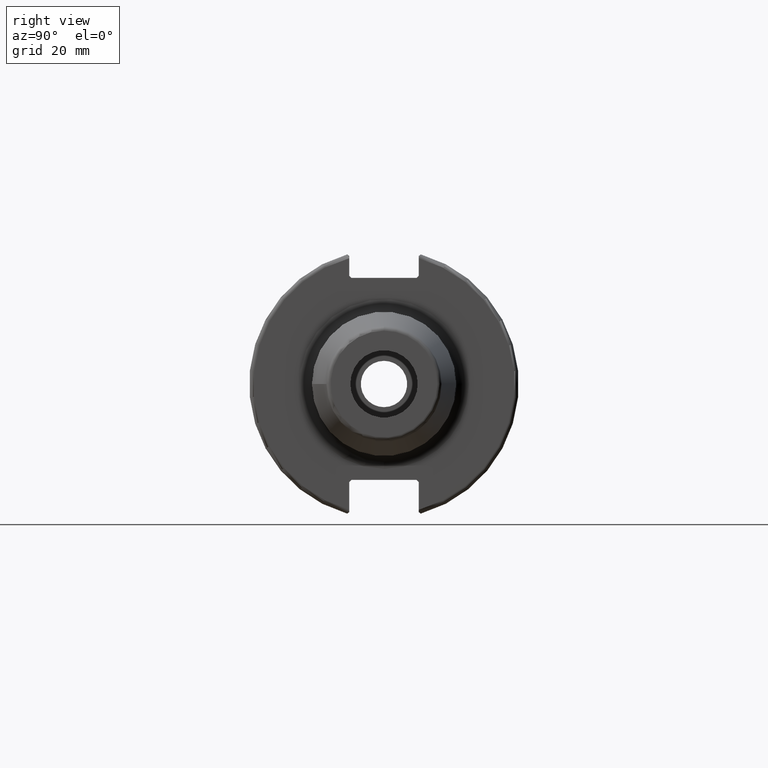
[diagram: clean part render]
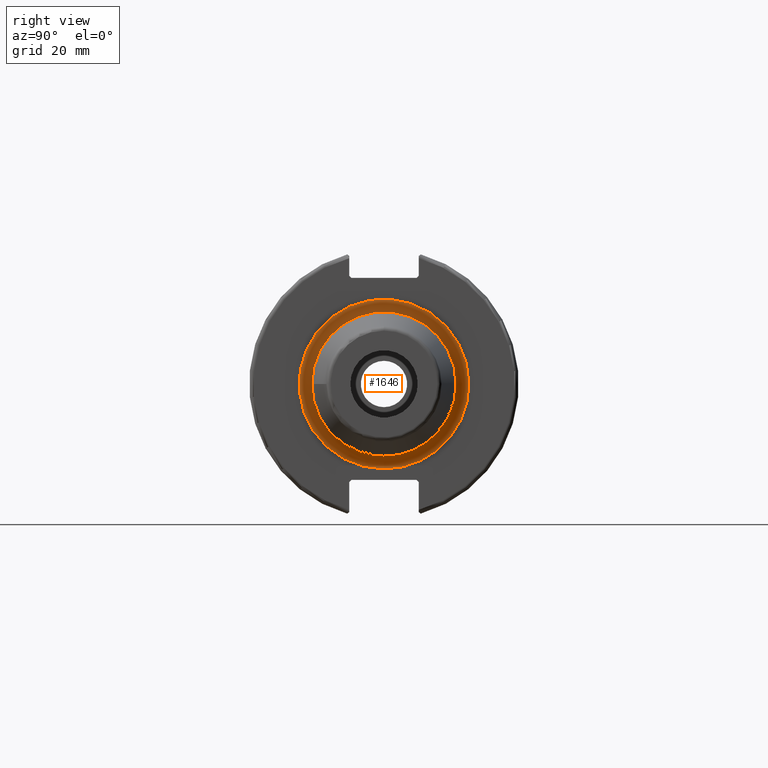
[diagram: same view with one face highlighted and labeled with its STEP entity id]
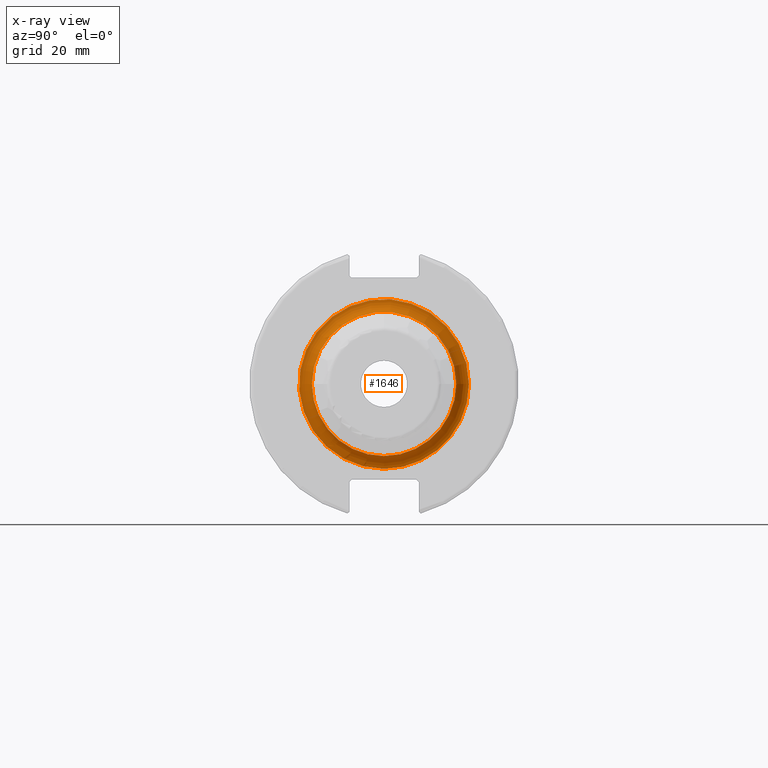
[diagram: x-ray of the same camera — body ghosted, the highlighted face saturated]
A machine part, right view. The second image highlights one B-rep face of the part: STEP entity #1646.
The next image is the same camera in x-ray: the body ghosted, the highlighted face saturated — about 0% of this face is hidden behind the body in this view.
In plain terms, the highlighted toroidal blend (fillet) surface has major radius 20 mm and minor (blend) radius 3 mm.
Its self-contained STEP definition (entity closure, byte-faithful):
#365=FACE_OUTER_BOUND('',#453,.T.);
#453=EDGE_LOOP('',(#1125,#1126,#1127,#1128,#1129,#1130,#1131));
#562=CIRCLE('',#1764,17.);
#563=CIRCLE('',#1765,3.);
#564=CIRCLE('',#1766,20.);
#565=CIRCLE('',#1767,20.);
#566=CIRCLE('',#1768,17.);
#567=CIRCLE('',#1769,17.);
#667=VERTEX_POINT('',#2504);
#668=VERTEX_POINT('',#2505);
#669=VERTEX_POINT('',#2507);
#670=VERTEX_POINT('',#2509);
#671=VERTEX_POINT('',#2512);
#854=EDGE_CURVE('',#667,#668,#562,.T.);
#855=EDGE_CURVE('',#668,#669,#563,.T.);
#856=EDGE_CURVE('',#669,#670,#564,.T.);
#857=EDGE_CURVE('',#670,#669,#565,.T.);
#858=EDGE_CURVE('',#668,#671,#566,.T.);
#859=EDGE_CURVE('',#671,#667,#567,.T.);
#1125=ORIENTED_EDGE('',*,*,#854,.T.);
#1126=ORIENTED_EDGE('',*,*,#855,.T.);
#1127=ORIENTED_EDGE('',*,*,#856,.T.);
#1128=ORIENTED_EDGE('',*,*,#857,.T.);
#1129=ORIENTED_EDGE('',*,*,#855,.F.);
#1130=ORIENTED_EDGE('',*,*,#858,.T.);
#1131=ORIENTED_EDGE('',*,*,#859,.T.);
#1636=TOROIDAL_SURFACE('',#1763,20.,3.);
#1646=ADVANCED_FACE('',(#365),#1636,.F.);
#1763=AXIS2_PLACEMENT_3D('',#2503,#1990,#1991);
#1764=AXIS2_PLACEMENT_3D('',#2506,#1992,#1993);
#1765=AXIS2_PLACEMENT_3D('',#2508,#1994,#1995);
#1766=AXIS2_PLACEMENT_3D('',#2510,#1996,#1997);
#1767=AXIS2_PLACEMENT_3D('',#2511,#1998,#1999);
#1768=AXIS2_PLACEMENT_3D('',#2513,#2000,#2001);
#1769=AXIS2_PLACEMENT_3D('',#2514,#2002,#2003);
#1990=DIRECTION('center_axis',(-1.,0.,0.));
#1991=DIRECTION('ref_axis',(0.,0.,1.));
#1992=DIRECTION('center_axis',(-1.,0.,0.));
#1993=DIRECTION('ref_axis',(0.,-1.,-1.22464679914735E-16));
#1994=DIRECTION('center_axis',(0.,-1.,1.22464679914735E-16));
#1995=DIRECTION('ref_axis',(0.,-1.22464679914735E-16,-1.));
#1996=DIRECTION('center_axis',(1.,0.,0.));
#1997=DIRECTION('ref_axis',(0.,-1.,-1.22464679914735E-16));
#1998=DIRECTION('center_axis',(1.,0.,0.));
#1999=DIRECTION('ref_axis',(0.,-1.,-1.22464679914735E-16));
#2000=DIRECTION('center_axis',(-1.,0.,0.));
#2001=DIRECTION('ref_axis',(0.,-1.,-1.22464679914735E-16));
#2002=DIRECTION('center_axis',(-1.,0.,0.));
#2003=DIRECTION('ref_axis',(0.,-1.,-1.22464679914735E-16));
#2503=CARTESIAN_POINT('Origin',(22.05,0.,0.));
#2504=CARTESIAN_POINT('',(22.05,17.,0.));
#2505=CARTESIAN_POINT('',(22.05,-2.0818995585505E-15,-17.));
#2506=CARTESIAN_POINT('Origin',(22.05,0.,0.));
#2507=CARTESIAN_POINT('',(19.05,-2.44929359829471E-15,-20.));
#2508=CARTESIAN_POINT('Origin',(22.05,-2.44929359829471E-15,-20.));
#2509=CARTESIAN_POINT('',(19.05,20.,4.89858719658941E-15));
#2510=CARTESIAN_POINT('Origin',(19.05,0.,0.));
#2511=CARTESIAN_POINT('Origin',(19.05,0.,0.));
#2512=CARTESIAN_POINT('',(22.05,-17.,-2.0818995585505E-15));
#2513=CARTESIAN_POINT('Origin',(22.05,0.,0.));
#2514=CARTESIAN_POINT('Origin',(22.05,0.,0.));